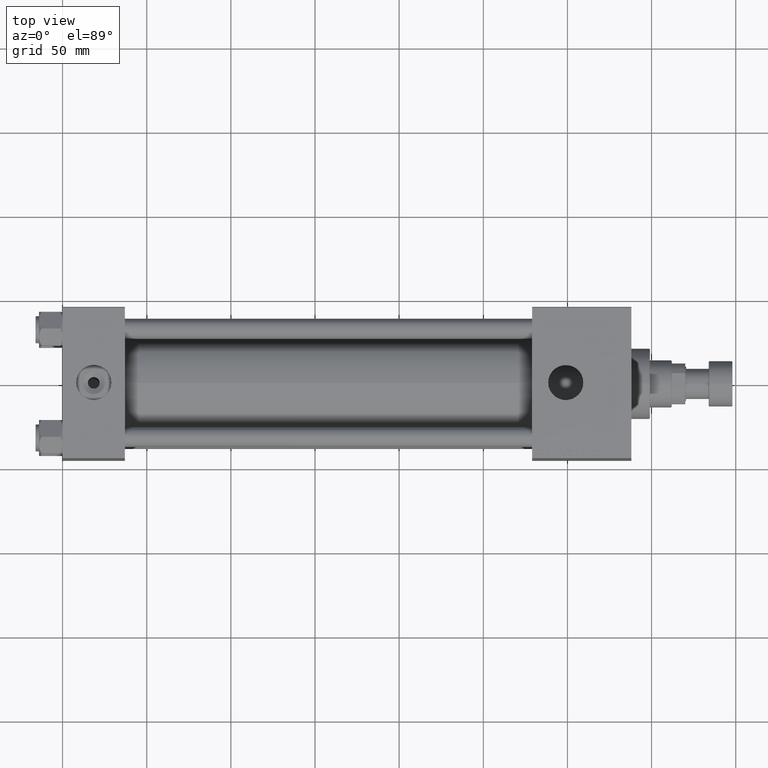
[diagram: clean part render]
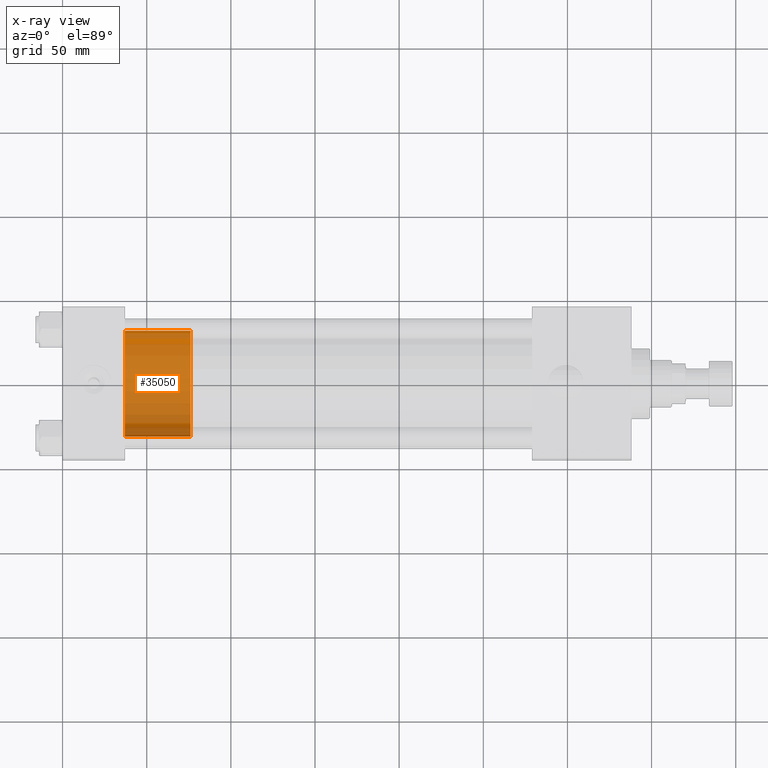
[diagram: x-ray — body ghosted, one internal face saturated and labeled with its STEP entity id]
A machine part, top view, then the same camera in x-ray: the body is ghosted and one INTERNAL B-rep face — a face not visible from any outside direction — is saturated and labeled: STEP entity #35050.
In plain terms, the highlighted cylindrical surface (partial cylindrical patch) has radius 31.5 mm, axis along (-1, 0, 0).
Its self-contained STEP definition (entity closure, byte-faithful):
#1137 = ORIENTED_EDGE ( 'NONE', *, *, #39271, .F. ) ;
#1776 = CARTESIAN_POINT ( 'NONE',  ( 0.000000000000000000, 0.000000000000000000, 0.000000000000000000 ) ) ;
#2877 = VECTOR ( 'NONE', #48189, 1000.000000000000000 ) ;
#3707 = AXIS2_PLACEMENT_3D ( 'NONE', #29905, #34459, #50467 ) ;
#7132 = CIRCLE ( 'NONE', #14843, 31.50000000000000000 ) ;
#8901 = ORIENTED_EDGE ( 'NONE', *, *, #9525, .T. ) ;
#9525 = EDGE_CURVE ( 'NONE', #45816, #47524, #15659, .T. ) ;
#10048 = CARTESIAN_POINT ( 'NONE',  ( -31.50000000000000000, 0.000000000000000000, 39.00000000000000000 ) ) ;
#11974 = DIRECTION ( 'NONE',  ( 1.000000000000000000, 0.000000000000000000, 0.000000000000000000 ) ) ;
#13545 = CARTESIAN_POINT ( 'NONE',  ( -31.50000000000000000, 0.000000000000000000, 0.000000000000000000 ) ) ;
#14843 = AXIS2_PLACEMENT_3D ( 'NONE', #37281, #45283, #11974 ) ;
#15659 = LINE ( 'NONE', #39924, #2877 ) ;
#15878 = DIRECTION ( 'NONE',  ( 1.000000000000000000, 0.000000000000000000, 0.000000000000000000 ) ) ;
#18061 = DIRECTION ( 'NONE',  ( 0.000000000000000000, 0.000000000000000000, 1.000000000000000000 ) ) ;
#18826 = LINE ( 'NONE', #10048, #50859 ) ;
#20958 = CARTESIAN_POINT ( 'NONE',  ( 31.50000000000000000, 3.857637417314162689E-15, 0.000000000000000000 ) ) ;
#27486 = ORIENTED_EDGE ( 'NONE', *, *, #46365, .F. ) ;
#29905 = CARTESIAN_POINT ( 'NONE',  ( 0.000000000000000000, 0.000000000000000000, 39.00000000000000000 ) ) ;
#30167 = FACE_OUTER_BOUND ( 'NONE', #42707, .T. ) ;
#30430 = CYLINDRICAL_SURFACE ( 'NONE', #3707, 31.50000000000000000 ) ;
#30562 = VERTEX_POINT ( 'NONE', #45395 ) ;
#31888 = VERTEX_POINT ( 'NONE', #13545 ) ;
#34459 = DIRECTION ( 'NONE',  ( -0.000000000000000000, -0.000000000000000000, -1.000000000000000000 ) ) ;
#35050 = ADVANCED_FACE ( 'NONE', ( #30167 ), #30430, .T. ) ;
#37281 = CARTESIAN_POINT ( 'NONE',  ( 0.000000000000000000, 0.000000000000000000, 39.00000000000000000 ) ) ;
#39271 = EDGE_CURVE ( 'NONE', #45816, #30562, #7132, .T. ) ;
#39924 = CARTESIAN_POINT ( 'NONE',  ( 31.50000000000000000, 3.857637417314162689E-15, 39.00000000000000000 ) ) ;
#41164 = CARTESIAN_POINT ( 'NONE',  ( 31.50000000000000000, 3.857637417314162689E-15, 39.00000000000000000 ) ) ;
#41478 = CIRCLE ( 'NONE', #50010, 31.50000000000000000 ) ;
#42707 = EDGE_LOOP ( 'NONE', ( #1137, #8901, #44485, #27486 ) ) ;
#44485 = ORIENTED_EDGE ( 'NONE', *, *, #46508, .T. ) ;
#45283 = DIRECTION ( 'NONE',  ( 0.000000000000000000, 0.000000000000000000, 1.000000000000000000 ) ) ;
#45395 = CARTESIAN_POINT ( 'NONE',  ( -31.50000000000000000, 0.000000000000000000, 39.00000000000000000 ) ) ;
#45816 = VERTEX_POINT ( 'NONE', #41164 ) ;
#46365 = EDGE_CURVE ( 'NONE', #30562, #31888, #18826, .T. ) ;
#46508 = EDGE_CURVE ( 'NONE', #47524, #31888, #41478, .T. ) ;
#46573 = DIRECTION ( 'NONE',  ( -0.000000000000000000, -0.000000000000000000, -1.000000000000000000 ) ) ;
#47524 = VERTEX_POINT ( 'NONE', #20958 ) ;
#48189 = DIRECTION ( 'NONE',  ( -0.000000000000000000, -0.000000000000000000, -1.000000000000000000 ) ) ;
#50010 = AXIS2_PLACEMENT_3D ( 'NONE', #1776, #18061, #15878 ) ;
#50467 = DIRECTION ( 'NONE',  ( -1.000000000000000000, 0.000000000000000000, 0.000000000000000000 ) ) ;
#50859 = VECTOR ( 'NONE', #46573, 1000.000000000000000 ) ;